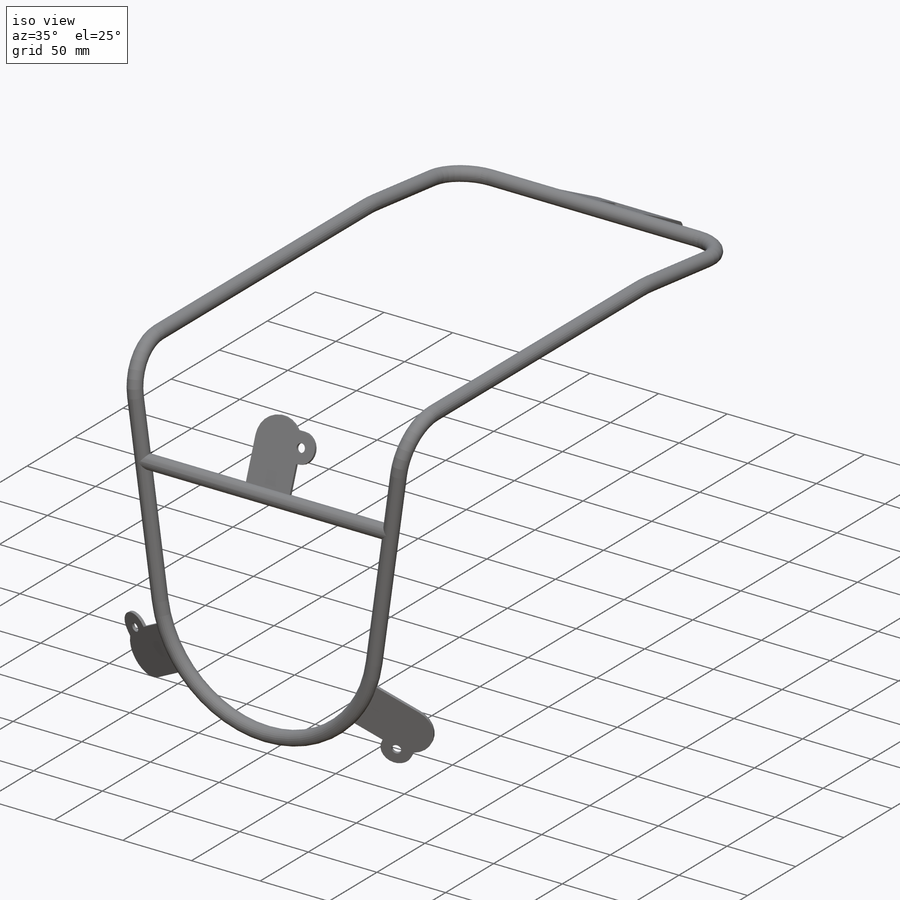
[diagram: iso view]
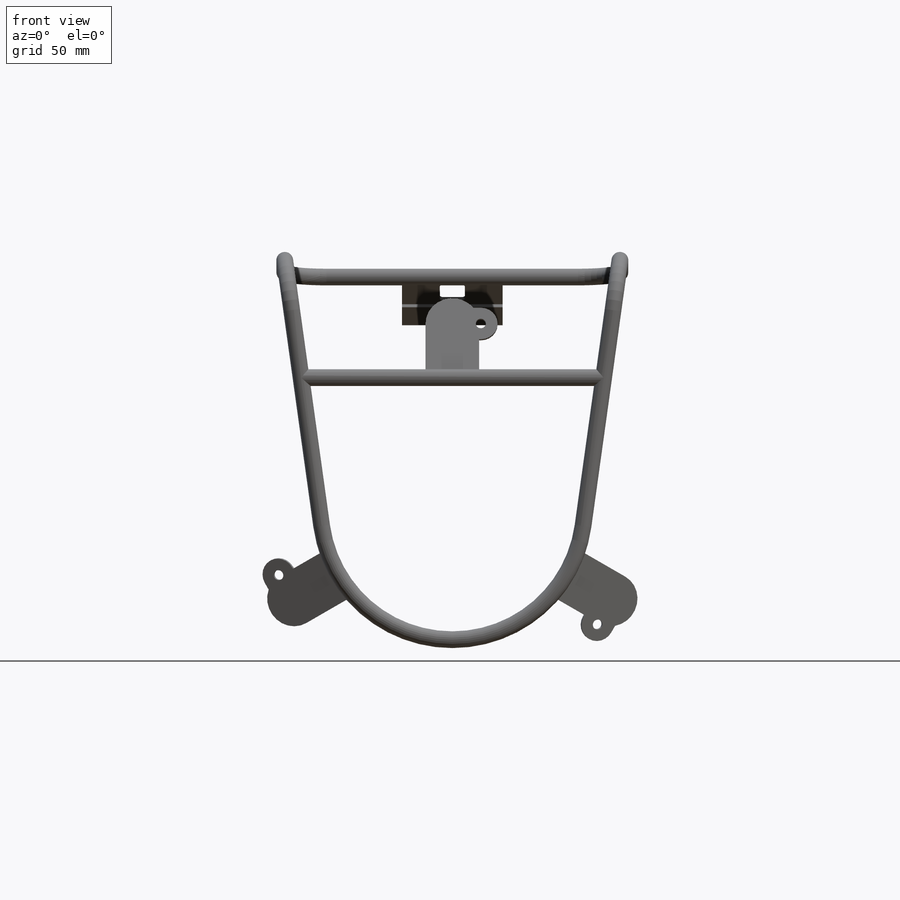
[diagram: front view]
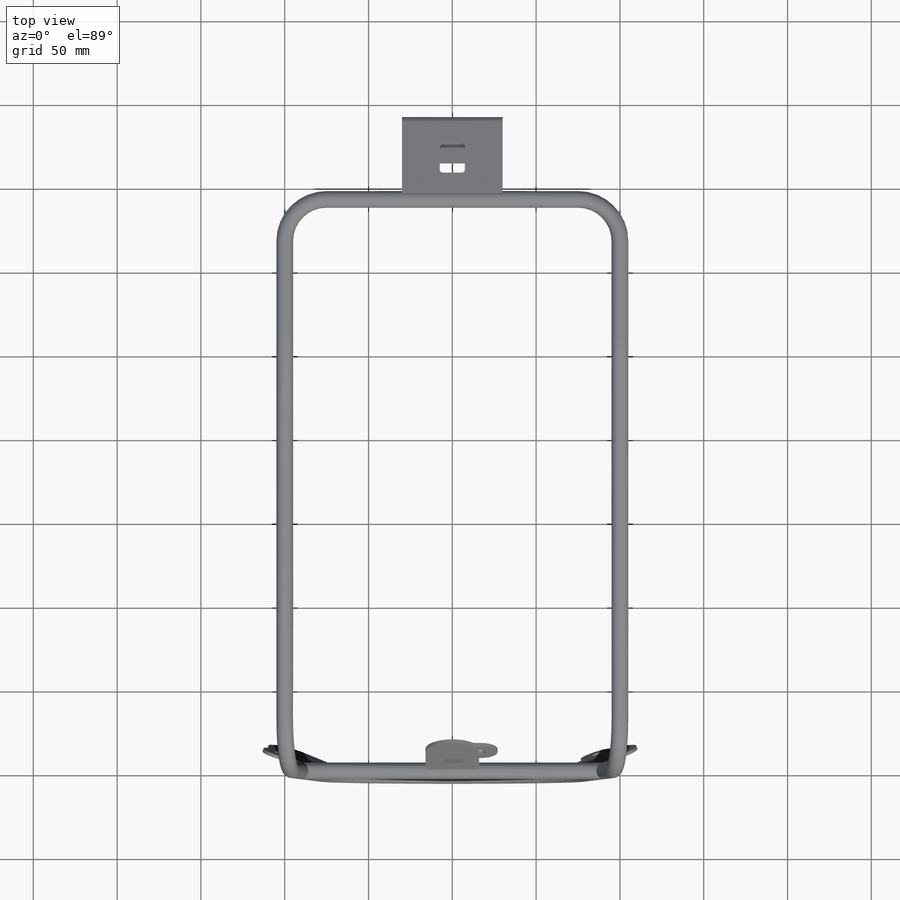
[diagram: top view]
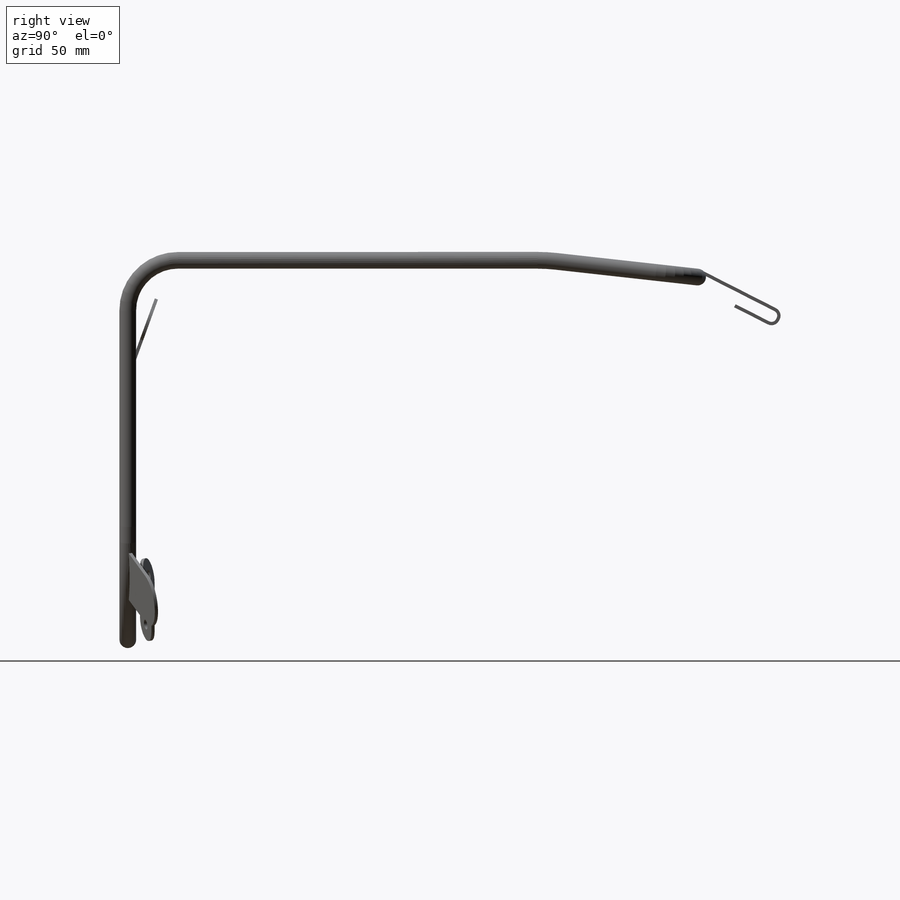
[diagram: right view]
SOLIDWORKS PART (.sldprt)
format: sldprt  version: not decoded by parser v0  size: 385,536 bytes
history: native  units: mm
features: sketch x9, plane x8, pattern_circular x4, sweep x2, extrude x2, material x1, cut_extrude x1 (+10 scaffold rows collapsed)
feature tree (37):
  scaffold x10  (default folders/planes/origin — collapsed)
  material  "材质 <未指定>"
  plane  "前视基准面"
  plane  "上视基准面"
  plane  "右视基准面"
  sketch  "3D草图1"  dims[c1.D2=25.0mm c1.D4=30.0mm c1.D5=100.0mm c1.D1=75.0mm c2.D2=75.0mm c2.D3=75.0mm c2.D1=250.0mm c3.D2=~112.342831mm c3.D7=90.0mm c3.D3=250.0mm c3.D4=~76.377381mm c4.D2=90.0mm c4.D5=~37.620828mm c5.D2=10.0mm c5.D6=~38.086842mm c6.D2=10.0mm c6.D6=~346.812056mm c6.D7=60.0mm c7.D6=~47.314847mm c7.D7=40.29mm c8.D6=~26.893942mm c8.D7=~26.893942mm c9.D6=130.0mm c9.D7=130.0mm c9.D8=130.0mm]
  plane  "基准面1"
  plane  "基准面2"  Offset=100mm
  sketch  "草图1"  dims[D1=~1.531888mm]
  sweep  "扫描1"
  plane  "基准面3"  Offset=70mm
  sketch  "草图2"  dims[D1=0.66mm D2=0.66mm]
  plane  "基准面6"
  sketch  "草图8"
  sweep  "扫描5"
  plane  "基准面7"
  sketch  "草图9"  dims[c1.D1=~5.057737mm c1.D3=~1.475634mm c2.D1=10.0mm c2.D2=10.0mm]
  extrude  "凸台-拉伸1"  Depth=2mm
  sketch  "草图13"  dims[D1=3.0]
  pattern_circular  "阵列(圆周)2"  Count=3 Angle=120deg
  pattern_circular  "基准轴2"  [2 undecoded]
  pattern_circular  "基准轴3"  [2 undecoded]
  pattern_circular  "基准轴4"  [2 undecoded]
  sketch  "草图14"  dims[D1=~51.474516mm D3=2.0mm D2=2.0mm]
  extrude  "凸台-拉伸2"  Depth=30mm
  sketch  "草图15"  dims[D1=20.0mm D2=15.0mm]
  cut_extrude  "切除-拉伸1"  Depth=5mm
  sketch  "草图16"  dims[D1=~5.55643mm]
decode coverage: 12 of 18 modeling features carry decoded parameters
note: ~ marks probable driven/reference dimensions
note: 6 parameter values undecoded
note: suppression state not decoded; provenance and decode notes live in map.json
